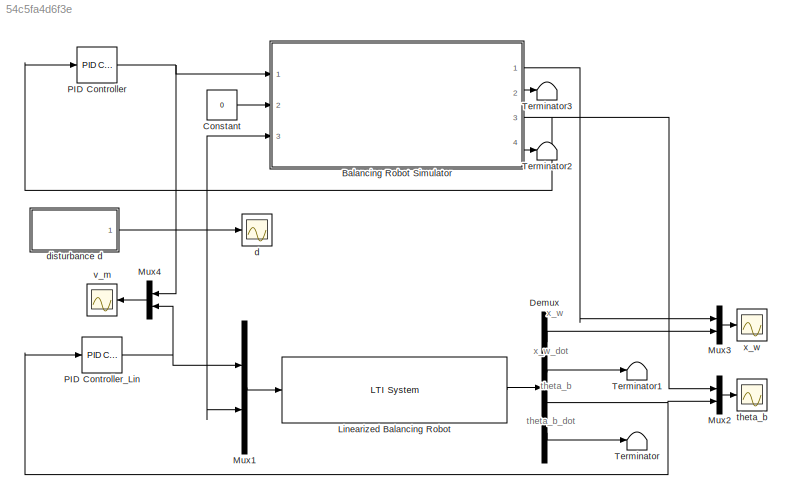
MODEL slx_54c5fa4d6f3e
KIND model
CONFIG AbsTol = auto
CONFIG EnableMultiTasking = on
CONFIG FixedStep = auto
CONFIG MaxStep = auto
CONFIG MinStep = auto
CONFIG RelTol = 1e-3
CONFIG SampleTimeConstraint = Unconstrained
CONFIG Solver = ode45
CONFIG SolverName = ode45
CONFIG StartTime = 0.0
CONFIG StopTime = 10.0
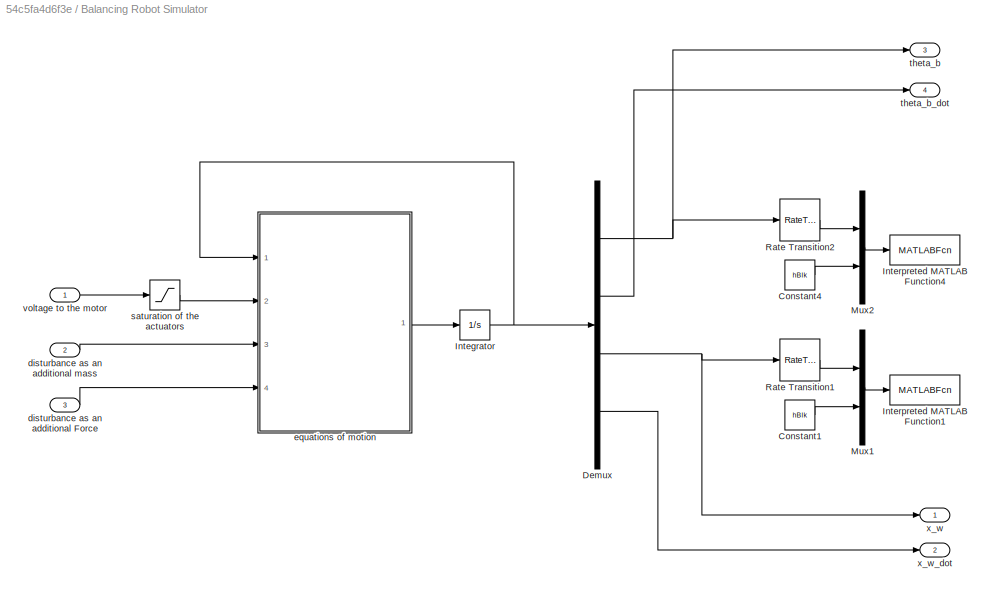
BLOCK [SubSystem] Balancing Robot Simulator
  Ports = [3, 4]
  RequestExecContextInheritance = off
  ShowPortLabels = SignalName
BLOCK [Constant] Balancing Robot Simulator/Constant1
  Value = hBlk
BLOCK [Constant] Balancing Robot Simulator/Constant4
  Value = hBlk
BLOCK [Demux] Balancing Robot Simulator/Demux
  DisplayOption = bar
  Ports = [1, 4]
BLOCK [Integrator] Balancing Robot Simulator/Integrator
  InitialCondition = X_0
  Ports = [1, 1]
BLOCK [MATLABFcn] Balancing Robot Simulator/Interpreted MATLAB Function1
  MATLABFcn = set_param(u(2),'x_w',num2str(u(1)))
  OutputDimensions = 0
  Ports = [1]
  SampleTime = 0.1
BLOCK [MATLABFcn] Balancing Robot Simulator/Interpreted MATLAB Function4
  MATLABFcn = set_param(u(2),'Theta',num2str(u(1)))
  OutputDimensions = 0
  Ports = [1]
BLOCK [Mux] Balancing Robot Simulator/Mux1
  DisplayOption = bar
  Inputs = 2
  Ports = [2, 1]
BLOCK [Mux] Balancing Robot Simulator/Mux2
  DisplayOption = bar
  Inputs = 2
  Ports = [2, 1]
BLOCK [RateTransition] Balancing Robot Simulator/Rate Transition1
  OutPortSampleTime = 0.1
BLOCK [RateTransition] Balancing Robot Simulator/Rate Transition2
  OutPortSampleTime = 0.1
BLOCK [Inport] Balancing Robot Simulator/disturbance as an additional Force
  IconDisplay = Port number
  Port = 3
BLOCK [Inport] Balancing Robot Simulator/disturbance as an additional mass 
  IconDisplay = Port number
  Port = 2
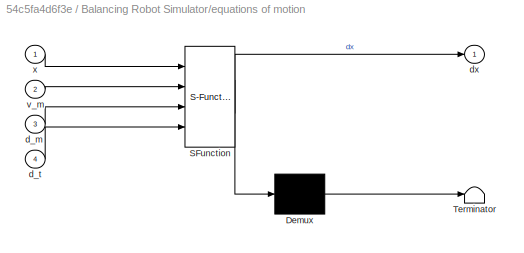
BLOCK [SubSystem] Balancing Robot Simulator/equations of motion
  ErrorFcn = Stateflow.Translate.translate
  PermitHierarchicalResolution = ExplicitOnly
  Ports = [4, 1]
  RequestExecContextInheritance = off
  SFBlockType = MATLAB Function
  TreatAsAtomicUnit = on
BLOCK [Demux] Balancing Robot Simulator/equations of motion/ Demux 
  Outputs = 1
  Ports = [1, 1]
BLOCK [S-Function] Balancing Robot Simulator/equations of motion/ SFunction 
  EnableBusSupport = on
  FunctionName = sf_sfun
  Parameters = I_b,I_w,K_e,K_t,L_m,R_m,b_f,b_m,g,l_b,l_w,m_b,m_w
  PortCounts = [4 2]
  Ports = [4, 2]
  SFcnIsStateOwnerBlock = off
  SFunctionDeploymentMode = off
  Tag = Stateflow S-Function 2
BLOCK [Terminator] Balancing Robot Simulator/equations of motion/ Terminator 
BLOCK [Inport] Balancing Robot Simulator/equations of motion/d_m
  IconDisplay = Port number
  Port = 3
BLOCK [Inport] Balancing Robot Simulator/equations of motion/d_t
  IconDisplay = Port number
  Port = 4
BLOCK [Outport] Balancing Robot Simulator/equations of motion/dx
  IconDisplay = Port number
BLOCK [Inport] Balancing Robot Simulator/equations of motion/v_m
  IconDisplay = Port number
  Port = 2
BLOCK [Inport] Balancing Robot Simulator/equations of motion/x
  IconDisplay = Port number
BLOCK [Saturate] Balancing Robot Simulator/saturation of the actuators
  InputPortMap = u0
  LowerLimit = -v_m_limit
  Ports = [1, 1]
  UpperLimit = v_m_limit
BLOCK [Outport] Balancing Robot Simulator/theta_b
  IconDisplay = Port number
  Port = 3
BLOCK [Outport] Balancing Robot Simulator/theta_b_dot 
  IconDisplay = Port number
  Port = 4
BLOCK [Inport] Balancing Robot Simulator/voltage to the motor
  IconDisplay = Port number
BLOCK [Outport] Balancing Robot Simulator/x_w
  IconDisplay = Port number
BLOCK [Outport] Balancing Robot Simulator/x_w_dot
  IconDisplay = Port number
  Port = 2
BLOCK [Constant] Constant
  Value = 0
BLOCK [Demux] Demux
  DisplayOption = bar
  Ports = [1, 4]
BLOCK [Reference] Linearized Balancing Robot  REF=cstblocks/LTI System
  Ports = [1, 1]
  SourceBlock = cstblocks/LTI System
  SourceProductBaseCode = CT
  SourceProductName = Control System Toolbox
  SourceType = LTI Block
BLOCK [Mux] Mux1
  DisplayOption = bar
  Inputs = 2
  Ports = [2, 1]
BLOCK [Mux] Mux2
  DisplayOption = bar
  Inputs = 2
  Ports = [2, 1]
BLOCK [Mux] Mux3
  DisplayOption = bar
  Inputs = 2
  Ports = [2, 1]
BLOCK [Mux] Mux4
  DisplayOption = bar
  Inputs = 2
  Ports = [2, 1]
BLOCK [Reference] PID Controller  REF=simulink/Continuous/PID Controller
  Ports = [1, 1]
  SourceBlock = simulink/Continuous/PID Controller
  SourceProductBaseCode = SL
  SourceProductName = Simulink
  SourceType = PID 1dof
BLOCK [Reference] PID Controller_Lin   REF=simulink/Continuous/PID Controller
  Ports = [1, 1]
  SourceBlock = simulink/Continuous/PID Controller
  SourceProductBaseCode = SL
  SourceProductName = Simulink
  SourceType = PID 1dof
BLOCK [Terminator] Terminator
BLOCK [Terminator] Terminator1
BLOCK [Terminator] Terminator2
BLOCK [Terminator] Terminator3
BLOCK [Scope] d
  Floating = off
  NumInputPorts = 1
  Ports = [1]
  ScopeSpecificationString = C++SS(StrPVP('Location','[10, 60, 1930, 1021]'),StrPVP('Open','off'),MxPVP('AxesTitles',54,'struct(''axes1'',''%<SignalLabel>'')'),MxPVP('ScopeGraphics',57,'struct(''FigureColor'',''[0.5 0.5 0.5]'',''AxesColor'',''[0 0 0]'',''AxesTickColor'',''[1 1 1]'',''LineColors'',''[1 1 0;1 0 1;0 1 1;1 0 0;0 1 0;0 0 1]'',''LineStyles'',''-|-|-|-|-|-'',''LineWidths'',''[0.5 0.5 0.5 0.5 0.5 0.5]'',''MarkerStyle...<+231ch>
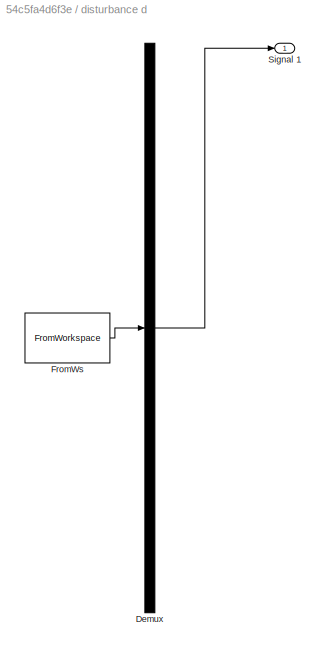
BLOCK [SubSystem] disturbance d
  ClipboardFcn = sigbuilder_block('clipboard');
  CloseFcn = sigbuilder_block('close');
  ContinueFcn = sigbuilder_block('continue');
  CopyFcn = sigbuilder_block('copy');
  DeleteFcn = sigbuilder_block('delete');
  LoadFcn = sigbuilder_block('load');
  MaskHideContents = on
  ModelCloseFcn = sigbuilder_block('modelClose');
  NameChangeFcn = sigbuilder_block('namechange');
  OpenFcn = sigbuilder_block('open',[426 62.25 573 426 ]);
  PauseFcn = sigbuilder_block('pause');
  Ports = [0, 1]
  PreSaveFcn = sigbuilder_block('preSave');
  RequestExecContextInheritance = off
  StartFcn = sigbuilder_block('start');
  StopFcn = sigbuilder_block('stop');
  Tag = STV Subsys
BLOCK [Demux] disturbance d/Demux
  Outputs = 1
  Ports = [1, 1]
  Tag = STV Demux
BLOCK [FromWorkspace] disturbance d/FromWs
  SampleTime = 0
  Tag = STV FromWs
  VariableName = tuvar
  ZeroCross = on
BLOCK [Outport] disturbance d/Signal 1
  IconDisplay = Port number
  Tag = STV Outport
BLOCK [Scope] theta_b
  Floating = off
  NumInputPorts = 1
  Ports = [1]
  ScopeSpecificationString = Simulink.scopes.TimeScopeBlockCfg('CurrentConfiguration', extmgr.ConfigurationSet(extmgr.Configuration('Core','General UI',true),extmgr.Configuration('Core','Source UI',true),extmgr.Configuration('Sources','WiredSimulink',true,'DataLogging',true,'DataLoggingVariableName','theta_b','DataLoggingSaveFormat','StructureWithTime','DataLoggingDecimation','1','DataLoggingDecimateData',true),extmgr.Configu...<+1734ch>
BLOCK [Scope] v_m
  Floating = off
  NumInputPorts = 1
  Ports = [1]
  ScopeSpecificationString = Simulink.scopes.TimeScopeBlockCfg('CurrentConfiguration', extmgr.ConfigurationSet(extmgr.Configuration('Core','General UI',true),extmgr.Configuration('Core','Source UI',true),extmgr.Configuration('Sources','WiredSimulink',true,'DataLogging',true,'DataLoggingVariableName','v_m','DataLoggingSaveFormat','StructureWithTime','DataLoggingDecimation','1','DataLoggingDecimateData',true),extmgr.Configurati...<+1703ch>
BLOCK [Scope] x_w
  Floating = off
  NumInputPorts = 1
  Ports = [1]
  ScopeSpecificationString = Simulink.scopes.TimeScopeBlockCfg('CurrentConfiguration', extmgr.ConfigurationSet(extmgr.Configuration('Core','General UI',true),extmgr.Configuration('Core','Source UI',true),extmgr.Configuration('Sources','WiredSimulink',true,'DataLogging',true,'DataLoggingVariableName','x_w','DataLoggingSaveFormat','StructureWithTime','DataLoggingDecimation','1','DataLoggingDecimateData',true),extmgr.Configurati...<+1685ch>
ANNOTATION (root): theta_b
ANNOTATION (root): theta_b_dot
ANNOTATION (root): x_w
ANNOTATION (root): x_w_dot
LINE Balancing Robot Simulator/Constant1:1 -> Balancing Robot Simulator/Mux1:2
LINE Balancing Robot Simulator/Constant4:1 -> Balancing Robot Simulator/Mux2:2
NET Balancing Robot Simulator/Demux:1 -> Balancing Robot Simulator/Rate Transition2:1, Balancing Robot Simulator/theta_b:1
LINE Balancing Robot Simulator/Demux:2 -> Balancing Robot Simulator/theta_b_dot :1
NET Balancing Robot Simulator/Demux:3 -> Balancing Robot Simulator/Rate Transition1:1, Balancing Robot Simulator/x_w:1
LINE Balancing Robot Simulator/Demux:4 -> Balancing Robot Simulator/x_w_dot:1
NET Balancing Robot Simulator/Integrator:1 -> Balancing Robot Simulator/Demux:1, Balancing Robot Simulator/equations of motion:1
LINE Balancing Robot Simulator/Mux1:1 -> Balancing Robot Simulator/Interpreted MATLAB Function1:1
LINE Balancing Robot Simulator/Mux2:1 -> Balancing Robot Simulator/Interpreted MATLAB Function4:1
LINE Balancing Robot Simulator/Rate Transition1:1 -> Balancing Robot Simulator/Mux1:1
LINE Balancing Robot Simulator/Rate Transition2:1 -> Balancing Robot Simulator/Mux2:1
LINE Balancing Robot Simulator/disturbance as an additional Force:1 -> Balancing Robot Simulator/equations of motion:4
LINE Balancing Robot Simulator/disturbance as an additional mass :1 -> Balancing Robot Simulator/equations of motion:3
LINE Balancing Robot Simulator/equations of motion:1 -> Balancing Robot Simulator/Integrator:1
LINE Balancing Robot Simulator/saturation of the actuators:1 -> Balancing Robot Simulator/equations of motion:2
LINE Balancing Robot Simulator/voltage to the motor:1 -> Balancing Robot Simulator/saturation of the actuators:1
LINE Balancing Robot Simulator:1 -> Mux3:1
LINE Balancing Robot Simulator:2 -> Terminator3:1
NET Balancing Robot Simulator:3 -> Mux2:1, PID Controller:1
LINE Balancing Robot Simulator:4 -> Terminator2:1
LINE Constant:1 -> Balancing Robot Simulator:2
LINE Demux:1 -> Mux3:2
LINE Demux:2 -> Terminator1:1
NET Demux:3 -> Mux2:2, PID Controller_Lin :1
LINE Demux:4 -> Terminator:1
LINE Linearized Balancing Robot:1 -> Demux:1
LINE Mux1:1 -> Linearized Balancing Robot:1
LINE Mux2:1 -> theta_b:1
LINE Mux3:1 -> x_w:1
LINE Mux4:1 -> v_m:1
NET PID Controller:1 -> Balancing Robot Simulator:1, Mux4:1
NET PID Controller_Lin :1 -> Mux1:1, Mux4:2
NET disturbance d:1 -> Balancing Robot Simulator:3, Mux1:2, d:1
note: NET lines group one-source signal fan-out (src -> all destinations, sorted); 1:1 wires keep LINE
CHART Balancing Robot Simulator/equations of motion states=1 transitions=1
  STATE_LABEL 'eML_blk_kernel()'
  STATE_LABEL 'SCRIPT:\nfunction dx = EquationsOfMotion(x,\t\t...\n\t\t\t\t\t\t\t\tv_m,\t...\n\t\t\t\t\t\t\t\td_m,\t... % additional mass on the body\n\t\t\t\t\t\t\t\td_t,\t... % Fource that acted on the body\n\t\t\t\t\t\t\t\tg,\t\t...\n\t\t\t\t\t\t\t\tb_f,\t...\n\t\t\t\t\t\t\t\tm_b,\t...\n\t\t\t\t\t\t\t\tl_b,\t...\n\t\t\t\t\t\t\t\tI_b,\t...\n\t\t\t\t\t\t\t\tm_w,\t...\n\t\t\t\t\t\t\t\tl_w,\t...\n\t\t\t\t\t\t\t\tI_w,\t...\n\t\t\t\t\t\t\t\tR_m,\t...\n\t\t\t\t\t\t\t\tL_m,\t...\n\t\t\t\t\t\t\t\tb_m,\t...\n\t\t\t\t\t\t\t\tK_e,\t...\n\t\t\t\t\t\t\t\tK_t\t\t) %#ok<*INUSL>\n\n% initi...<+1583ch>'
